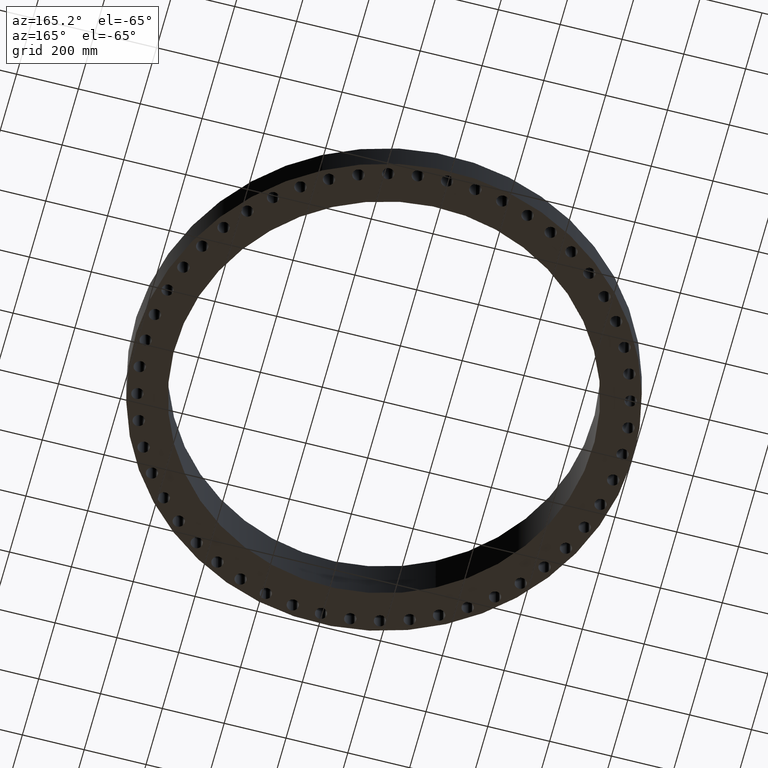
[diagram: clean part render]
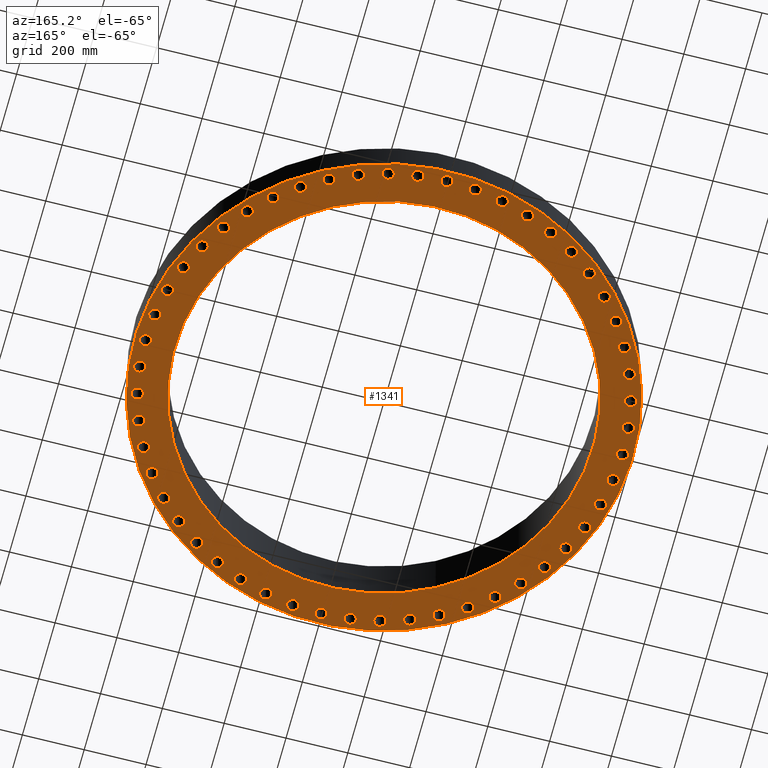
[diagram: same view with one face highlighted and labeled with its STEP entity id]
A machine part, auxiliary view. The second image highlights one B-rep face of the part: STEP entity #1341.
In plain terms, the highlighted planar face has unit normal (0, 0, -1).
Its self-contained STEP definition (entity closure, byte-faithful):
#51=AXIS2_PLACEMENT_3D('Circle Axis2P3D',#49,#50,$) ;
#77=AXIS2_PLACEMENT_3D('Circle Axis2P3D',#75,#76,$) ;
#99=AXIS2_PLACEMENT_3D('Circle Axis2P3D',#97,#98,$) ;
#134=AXIS2_PLACEMENT_3D('Circle Axis2P3D',#132,#133,$) ;
#377=AXIS2_PLACEMENT_3D('Circle Axis2P3D',#375,#376,$) ;
#396=AXIS2_PLACEMENT_3D('Circle Axis2P3D',#394,#395,$) ;
#409=AXIS2_PLACEMENT_3D('Plane Axis2P3D',#406,#407,#408) ;
#425=AXIS2_PLACEMENT_3D('Circle Axis2P3D',#423,#424,$) ;
#434=AXIS2_PLACEMENT_3D('Circle Axis2P3D',#432,#433,$) ;
#443=AXIS2_PLACEMENT_3D('Circle Axis2P3D',#441,#442,$) ;
#452=AXIS2_PLACEMENT_3D('Circle Axis2P3D',#450,#451,$) ;
#461=AXIS2_PLACEMENT_3D('Circle Axis2P3D',#459,#460,$) ;
#470=AXIS2_PLACEMENT_3D('Circle Axis2P3D',#468,#469,$) ;
#479=AXIS2_PLACEMENT_3D('Circle Axis2P3D',#477,#478,$) ;
#488=AXIS2_PLACEMENT_3D('Circle Axis2P3D',#486,#487,$) ;
#497=AXIS2_PLACEMENT_3D('Circle Axis2P3D',#495,#496,$) ;
#506=AXIS2_PLACEMENT_3D('Circle Axis2P3D',#504,#505,$) ;
#515=AXIS2_PLACEMENT_3D('Circle Axis2P3D',#513,#514,$) ;
#524=AXIS2_PLACEMENT_3D('Circle Axis2P3D',#522,#523,$) ;
#533=AXIS2_PLACEMENT_3D('Circle Axis2P3D',#531,#532,$) ;
#542=AXIS2_PLACEMENT_3D('Circle Axis2P3D',#540,#541,$) ;
#551=AXIS2_PLACEMENT_3D('Circle Axis2P3D',#549,#550,$) ;
#560=AXIS2_PLACEMENT_3D('Circle Axis2P3D',#558,#559,$) ;
#569=AXIS2_PLACEMENT_3D('Circle Axis2P3D',#567,#568,$) ;
#578=AXIS2_PLACEMENT_3D('Circle Axis2P3D',#576,#577,$) ;
#587=AXIS2_PLACEMENT_3D('Circle Axis2P3D',#585,#586,$) ;
#596=AXIS2_PLACEMENT_3D('Circle Axis2P3D',#594,#595,$) ;
#605=AXIS2_PLACEMENT_3D('Circle Axis2P3D',#603,#604,$) ;
#614=AXIS2_PLACEMENT_3D('Circle Axis2P3D',#612,#613,$) ;
#623=AXIS2_PLACEMENT_3D('Circle Axis2P3D',#621,#622,$) ;
#632=AXIS2_PLACEMENT_3D('Circle Axis2P3D',#630,#631,$) ;
#641=AXIS2_PLACEMENT_3D('Circle Axis2P3D',#639,#640,$) ;
#650=AXIS2_PLACEMENT_3D('Circle Axis2P3D',#648,#649,$) ;
#659=AXIS2_PLACEMENT_3D('Circle Axis2P3D',#657,#658,$) ;
#668=AXIS2_PLACEMENT_3D('Circle Axis2P3D',#666,#667,$) ;
#677=AXIS2_PLACEMENT_3D('Circle Axis2P3D',#675,#676,$) ;
#686=AXIS2_PLACEMENT_3D('Circle Axis2P3D',#684,#685,$) ;
#695=AXIS2_PLACEMENT_3D('Circle Axis2P3D',#693,#694,$) ;
#704=AXIS2_PLACEMENT_3D('Circle Axis2P3D',#702,#703,$) ;
#713=AXIS2_PLACEMENT_3D('Circle Axis2P3D',#711,#712,$) ;
#722=AXIS2_PLACEMENT_3D('Circle Axis2P3D',#720,#721,$) ;
#731=AXIS2_PLACEMENT_3D('Circle Axis2P3D',#729,#730,$) ;
#740=AXIS2_PLACEMENT_3D('Circle Axis2P3D',#738,#739,$) ;
#749=AXIS2_PLACEMENT_3D('Circle Axis2P3D',#747,#748,$) ;
#758=AXIS2_PLACEMENT_3D('Circle Axis2P3D',#756,#757,$) ;
#767=AXIS2_PLACEMENT_3D('Circle Axis2P3D',#765,#766,$) ;
#776=AXIS2_PLACEMENT_3D('Circle Axis2P3D',#774,#775,$) ;
#785=AXIS2_PLACEMENT_3D('Circle Axis2P3D',#783,#784,$) ;
#794=AXIS2_PLACEMENT_3D('Circle Axis2P3D',#792,#793,$) ;
#803=AXIS2_PLACEMENT_3D('Circle Axis2P3D',#801,#802,$) ;
#812=AXIS2_PLACEMENT_3D('Circle Axis2P3D',#810,#811,$) ;
#821=AXIS2_PLACEMENT_3D('Circle Axis2P3D',#819,#820,$) ;
#830=AXIS2_PLACEMENT_3D('Circle Axis2P3D',#828,#829,$) ;
#839=AXIS2_PLACEMENT_3D('Circle Axis2P3D',#837,#838,$) ;
#848=AXIS2_PLACEMENT_3D('Circle Axis2P3D',#846,#847,$) ;
#857=AXIS2_PLACEMENT_3D('Circle Axis2P3D',#855,#856,$) ;
#866=AXIS2_PLACEMENT_3D('Circle Axis2P3D',#864,#865,$) ;
#875=AXIS2_PLACEMENT_3D('Circle Axis2P3D',#873,#874,$) ;
#884=AXIS2_PLACEMENT_3D('Circle Axis2P3D',#882,#883,$) ;
#893=AXIS2_PLACEMENT_3D('Circle Axis2P3D',#891,#892,$) ;
#902=AXIS2_PLACEMENT_3D('Circle Axis2P3D',#900,#901,$) ;
#911=AXIS2_PLACEMENT_3D('Circle Axis2P3D',#909,#910,$) ;
#920=AXIS2_PLACEMENT_3D('Circle Axis2P3D',#918,#919,$) ;
#929=AXIS2_PLACEMENT_3D('Circle Axis2P3D',#927,#928,$) ;
#938=AXIS2_PLACEMENT_3D('Circle Axis2P3D',#936,#937,$) ;
#947=AXIS2_PLACEMENT_3D('Circle Axis2P3D',#945,#946,$) ;
#956=AXIS2_PLACEMENT_3D('Circle Axis2P3D',#954,#955,$) ;
#965=AXIS2_PLACEMENT_3D('Circle Axis2P3D',#963,#964,$) ;
#974=AXIS2_PLACEMENT_3D('Circle Axis2P3D',#972,#973,$) ;
#983=AXIS2_PLACEMENT_3D('Circle Axis2P3D',#981,#982,$) ;
#992=AXIS2_PLACEMENT_3D('Circle Axis2P3D',#990,#991,$) ;
#1001=AXIS2_PLACEMENT_3D('Circle Axis2P3D',#999,#1000,$) ;
#1010=AXIS2_PLACEMENT_3D('Circle Axis2P3D',#1008,#1009,$) ;
#1019=AXIS2_PLACEMENT_3D('Circle Axis2P3D',#1017,#1018,$) ;
#1028=AXIS2_PLACEMENT_3D('Circle Axis2P3D',#1026,#1027,$) ;
#1037=AXIS2_PLACEMENT_3D('Circle Axis2P3D',#1035,#1036,$) ;
#1046=AXIS2_PLACEMENT_3D('Circle Axis2P3D',#1044,#1045,$) ;
#1055=AXIS2_PLACEMENT_3D('Circle Axis2P3D',#1053,#1054,$) ;
#1064=AXIS2_PLACEMENT_3D('Circle Axis2P3D',#1062,#1063,$) ;
#1073=AXIS2_PLACEMENT_3D('Circle Axis2P3D',#1071,#1072,$) ;
#1082=AXIS2_PLACEMENT_3D('Circle Axis2P3D',#1080,#1081,$) ;
#1091=AXIS2_PLACEMENT_3D('Circle Axis2P3D',#1089,#1090,$) ;
#1100=AXIS2_PLACEMENT_3D('Circle Axis2P3D',#1098,#1099,$) ;
#1109=AXIS2_PLACEMENT_3D('Circle Axis2P3D',#1107,#1108,$) ;
#1118=AXIS2_PLACEMENT_3D('Circle Axis2P3D',#1116,#1117,$) ;
#1127=AXIS2_PLACEMENT_3D('Circle Axis2P3D',#1125,#1126,$) ;
#1136=AXIS2_PLACEMENT_3D('Circle Axis2P3D',#1134,#1135,$) ;
#1145=AXIS2_PLACEMENT_3D('Circle Axis2P3D',#1143,#1144,$) ;
#1154=AXIS2_PLACEMENT_3D('Circle Axis2P3D',#1152,#1153,$) ;
#1163=AXIS2_PLACEMENT_3D('Circle Axis2P3D',#1161,#1162,$) ;
#1172=AXIS2_PLACEMENT_3D('Circle Axis2P3D',#1170,#1171,$) ;
#1181=AXIS2_PLACEMENT_3D('Circle Axis2P3D',#1179,#1180,$) ;
#1190=AXIS2_PLACEMENT_3D('Circle Axis2P3D',#1188,#1189,$) ;
#1199=AXIS2_PLACEMENT_3D('Circle Axis2P3D',#1197,#1198,$) ;
#1208=AXIS2_PLACEMENT_3D('Circle Axis2P3D',#1206,#1207,$) ;
#1217=AXIS2_PLACEMENT_3D('Circle Axis2P3D',#1215,#1216,$) ;
#1226=AXIS2_PLACEMENT_3D('Circle Axis2P3D',#1224,#1225,$) ;
#1235=AXIS2_PLACEMENT_3D('Circle Axis2P3D',#1233,#1234,$) ;
#1244=AXIS2_PLACEMENT_3D('Circle Axis2P3D',#1242,#1243,$) ;
#1253=AXIS2_PLACEMENT_3D('Circle Axis2P3D',#1251,#1252,$) ;
#1262=AXIS2_PLACEMENT_3D('Circle Axis2P3D',#1260,#1261,$) ;
#1271=AXIS2_PLACEMENT_3D('Circle Axis2P3D',#1269,#1270,$) ;
#1280=AXIS2_PLACEMENT_3D('Circle Axis2P3D',#1278,#1279,$) ;
#1289=AXIS2_PLACEMENT_3D('Circle Axis2P3D',#1287,#1288,$) ;
#1298=AXIS2_PLACEMENT_3D('Circle Axis2P3D',#1296,#1297,$) ;
#1307=AXIS2_PLACEMENT_3D('Circle Axis2P3D',#1305,#1306,$) ;
#1316=AXIS2_PLACEMENT_3D('Circle Axis2P3D',#1314,#1315,$) ;
#1325=AXIS2_PLACEMENT_3D('Circle Axis2P3D',#1323,#1324,$) ;
#1334=AXIS2_PLACEMENT_3D('Circle Axis2P3D',#1332,#1333,$) ;
#44=CARTESIAN_POINT('Vertex',(29.7168130787,0.359569153955,0.)) ;
#49=CARTESIAN_POINT('Axis2P3D Location',(30.3750000001,0.,0.)) ;
#53=CARTESIAN_POINT('Vertex',(31.0331869215,-0.359569153955,0.)) ;
#75=CARTESIAN_POINT('Axis2P3D Location',(30.3750000001,0.,0.)) ;
#97=CARTESIAN_POINT('Axis2P3D Location',(0.,0.,3.91637728372E-015)) ;
#101=CARTESIAN_POINT('Vertex',(-15.2217608507,-27.8632463401,3.91637728372E-015)) ;
#103=CARTESIAN_POINT('Vertex',(15.2217608507,27.8632463401,3.91637728372E-015)) ;
#132=CARTESIAN_POINT('Axis2P3D Location',(0.,0.,3.91637728372E-015)) ;
#372=CARTESIAN_POINT('Vertex',(-12.7647049654,-23.3656357104,-5.37103170338E-014)) ;
#375=CARTESIAN_POINT('Axis2P3D Location',(0.,0.,-5.37103170338E-014)) ;
#379=CARTESIAN_POINT('Vertex',(12.7647049654,23.3656357104,-5.37103170338E-014)) ;
#394=CARTESIAN_POINT('Axis2P3D Location',(0.,0.,-5.37103170338E-014)) ;
#406=CARTESIAN_POINT('Axis2P3D Location',(0.,26.6250000001,0.)) ;
#423=CARTESIAN_POINT('Axis2P3D Location',(30.1535320508,-3.66130166277,0.)) ;
#427=CARTESIAN_POINT('Vertex',(29.5434853253,-3.22501850629,0.)) ;
#429=CARTESIAN_POINT('Vertex',(30.7635787764,-4.09758481925,0.)) ;
#432=CARTESIAN_POINT('Axis2P3D Location',(30.1535320508,-3.66130166277,0.)) ;
#441=CARTESIAN_POINT('Axis2P3D Location',(29.4923577044,-7.26921330276,0.)) ;
#445=CARTESIAN_POINT('Vertex',(28.9393470297,-6.76257813461,0.)) ;
#447=CARTESIAN_POINT('Vertex',(30.0453683792,-7.77584847092,-4.47585975282E-015)) ;
#450=CARTESIAN_POINT('Axis2P3D Location',(29.4923577044,-7.26921330276,0.)) ;
#459=CARTESIAN_POINT('Axis2P3D Location',(28.4011183717,-10.771123444,0.)) ;
#463=CARTESIAN_POINT('Vertex',(27.9132078887,-10.2015241457,0.)) ;
#465=CARTESIAN_POINT('Vertex',(28.8890288547,-11.3407227422,0.)) ;
#468=CARTESIAN_POINT('Axis2P3D Location',(28.4011183717,-10.771123444,0.)) ;
#477=CARTESIAN_POINT('Axis2P3D Location',(26.8957267793,-14.1159663509,0.)) ;
#481=CARTESIAN_POINT('Vertex',(26.4800313215,-13.491708963,0.)) ;
#483=CARTESIAN_POINT('Vertex',(27.3114222371,-14.7402237388,0.)) ;
#486=CARTESIAN_POINT('Axis2P3D Location',(26.8957267793,-14.1159663509,0.)) ;
#495=CARTESIAN_POINT('Axis2P3D Location',(24.9981349266,-17.254966682,0.)) ;
#499=CARTESIAN_POINT('Vertex',(24.6607162699,-16.5851542828,0.)) ;
#501=CARTESIAN_POINT('Vertex',(25.3355535833,-17.9247790812,0.)) ;
#504=CARTESIAN_POINT('Axis2P3D Location',(24.9981349266,-17.254966682,0.)) ;
#513=CARTESIAN_POINT('Axis2P3D Location',(22.7360139758,-20.1423507441,0.)) ;
#517=CARTESIAN_POINT('Vertex',(22.481792444,-19.4367507067,0.)) ;
#519=CARTESIAN_POINT('Vertex',(22.9902355076,-20.8479507815,0.)) ;
#522=CARTESIAN_POINT('Axis2P3D Location',(22.7360139758,-20.1423507441,0.)) ;
#531=CARTESIAN_POINT('Axis2P3D Location',(20.1423507441,-22.7360139758,0.)) ;
#535=CARTESIAN_POINT('Vertex',(19.9750334596,-22.0049155376,0.)) ;
#537=CARTESIAN_POINT('Vertex',(20.3096680287,-23.467112414,0.)) ;
#540=CARTESIAN_POINT('Axis2P3D Location',(20.1423507441,-22.7360139758,0.)) ;
#549=CARTESIAN_POINT('Axis2P3D Location',(17.254966682,-24.9981349266,0.)) ;
#553=CARTESIAN_POINT('Vertex',(17.1769935076,-24.2521991492,0.)) ;
#555=CARTESIAN_POINT('Vertex',(17.3329398565,-25.7440707041,0.)) ;
#558=CARTESIAN_POINT('Axis2P3D Location',(17.254966682,-24.9981349266,0.)) ;
#567=CARTESIAN_POINT('Axis2P3D Location',(14.1159663509,-26.8957267793,0.)) ;
#571=CARTESIAN_POINT('Vertex',(14.128474311,-26.145831086,0.)) ;
#573=CARTESIAN_POINT('Vertex',(14.1034583908,-27.6456224727,-2.23792987641E-015)) ;
#576=CARTESIAN_POINT('Axis2P3D Location',(14.1159663509,-26.8957267793,0.)) ;
#585=CARTESIAN_POINT('Axis2P3D Location',(10.771123444,-28.4011183717,0.)) ;
#589=CARTESIAN_POINT('Vertex',(10.8739301444,-27.6581979302,0.)) ;
#591=CARTESIAN_POINT('Vertex',(10.6683167436,-29.1440388132,-4.47585975282E-015)) ;
#594=CARTESIAN_POINT('Axis2P3D Location',(10.771123444,-28.4011183717,0.)) ;
#603=CARTESIAN_POINT('Axis2P3D Location',(7.26921330276,-29.4923577044,0.)) ;
#607=CARTESIAN_POINT('Vertex',(7.46081959027,-28.7672459678,0.)) ;
#609=CARTESIAN_POINT('Vertex',(7.07760701526,-30.2174694411,0.)) ;
#612=CARTESIAN_POINT('Axis2P3D Location',(7.26921330276,-29.4923577044,0.)) ;
#621=CARTESIAN_POINT('Axis2P3D Location',(3.66130166277,-30.1535320508,0.)) ;
#625=CARTESIAN_POINT('Vertex',(3.93891348626,-29.456802781,0.)) ;
#627=CARTESIAN_POINT('Vertex',(3.38368983928,-30.8502613207,0.)) ;
#630=CARTESIAN_POINT('Axis2P3D Location',(3.66130166277,-30.1535320508,0.)) ;
#639=CARTESIAN_POINT('Axis2P3D Location',(1.24484849375E-014,-30.3750000001,0.)) ;
#643=CARTESIAN_POINT('Vertex',(0.359569153955,-29.7168130787,0.)) ;
#645=CARTESIAN_POINT('Vertex',(-0.359569153955,-31.0331869215,0.)) ;
#648=CARTESIAN_POINT('Axis2P3D Location',(4.96540691328E-015,-30.3750000001,0.)) ;
#657=CARTESIAN_POINT('Axis2P3D Location',(-3.66130166277,-30.1535320508,0.)) ;
#661=CARTESIAN_POINT('Vertex',(-3.22501850629,-29.5434853253,0.)) ;
#663=CARTESIAN_POINT('Vertex',(-4.09758481925,-30.7635787764,0.)) ;
#666=CARTESIAN_POINT('Axis2P3D Location',(-3.66130166277,-30.1535320508,0.)) ;
#675=CARTESIAN_POINT('Axis2P3D Location',(-7.26921330276,-29.4923577044,0.)) ;
#679=CARTESIAN_POINT('Vertex',(-6.76257813461,-28.9393470297,0.)) ;
#681=CARTESIAN_POINT('Vertex',(-7.77584847092,-30.0453683792,-4.47585975282E-015)) ;
#684=CARTESIAN_POINT('Axis2P3D Location',(-7.26921330276,-29.4923577044,0.)) ;
#693=CARTESIAN_POINT('Axis2P3D Location',(-10.771123444,-28.4011183717,0.)) ;
#697=CARTESIAN_POINT('Vertex',(-10.2015241457,-27.9132078887,0.)) ;
#699=CARTESIAN_POINT('Vertex',(-11.3407227422,-28.8890288547,-4.47585975282E-015)) ;
#702=CARTESIAN_POINT('Axis2P3D Location',(-10.771123444,-28.4011183717,0.)) ;
#711=CARTESIAN_POINT('Axis2P3D Location',(-14.1159663509,-26.8957267793,0.)) ;
#715=CARTESIAN_POINT('Vertex',(-13.491708963,-26.4800313215,0.)) ;
#717=CARTESIAN_POINT('Vertex',(-14.7402237388,-27.3114222371,0.)) ;
#720=CARTESIAN_POINT('Axis2P3D Location',(-14.1159663509,-26.8957267793,0.)) ;
#729=CARTESIAN_POINT('Axis2P3D Location',(-17.254966682,-24.9981349266,0.)) ;
#733=CARTESIAN_POINT('Vertex',(-16.5851542828,-24.6607162699,0.)) ;
#735=CARTESIAN_POINT('Vertex',(-17.9247790812,-25.3355535833,0.)) ;
#738=CARTESIAN_POINT('Axis2P3D Location',(-17.254966682,-24.9981349266,0.)) ;
#747=CARTESIAN_POINT('Axis2P3D Location',(-20.1423507441,-22.7360139758,0.)) ;
#751=CARTESIAN_POINT('Vertex',(-19.4367507067,-22.481792444,0.)) ;
#753=CARTESIAN_POINT('Vertex',(-20.8479507815,-22.9902355076,0.)) ;
#756=CARTESIAN_POINT('Axis2P3D Location',(-20.1423507441,-22.7360139758,0.)) ;
#765=CARTESIAN_POINT('Axis2P3D Location',(-22.7360139758,-20.1423507441,0.)) ;
#769=CARTESIAN_POINT('Vertex',(-22.0049155376,-19.9750334596,0.)) ;
#771=CARTESIAN_POINT('Vertex',(-23.467112414,-20.3096680287,0.)) ;
#774=CARTESIAN_POINT('Axis2P3D Location',(-22.7360139758,-20.1423507441,0.)) ;
#783=CARTESIAN_POINT('Axis2P3D Location',(-24.9981349266,-17.254966682,0.)) ;
#787=CARTESIAN_POINT('Vertex',(-24.2521991492,-17.1769935076,0.)) ;
#789=CARTESIAN_POINT('Vertex',(-25.7440707041,-17.3329398565,-4.47585975282E-015)) ;
#792=CARTESIAN_POINT('Axis2P3D Location',(-24.9981349266,-17.254966682,0.)) ;
#801=CARTESIAN_POINT('Axis2P3D Location',(-26.8957267793,-14.1159663509,0.)) ;
#805=CARTESIAN_POINT('Vertex',(-26.145831086,-14.128474311,0.)) ;
#807=CARTESIAN_POINT('Vertex',(-27.6456224727,-14.1034583908,0.)) ;
#810=CARTESIAN_POINT('Axis2P3D Location',(-26.8957267793,-14.1159663509,0.)) ;
#819=CARTESIAN_POINT('Axis2P3D Location',(-28.4011183717,-10.771123444,0.)) ;
#823=CARTESIAN_POINT('Vertex',(-27.6581979302,-10.8739301444,0.)) ;
#825=CARTESIAN_POINT('Vertex',(-29.1440388132,-10.6683167436,-4.47585975282E-015)) ;
#828=CARTESIAN_POINT('Axis2P3D Location',(-28.4011183717,-10.771123444,0.)) ;
#837=CARTESIAN_POINT('Axis2P3D Location',(-29.4923577044,-7.26921330276,0.)) ;
#841=CARTESIAN_POINT('Vertex',(-28.7672459678,-7.46081959027,0.)) ;
#843=CARTESIAN_POINT('Vertex',(-30.2174694411,-7.07760701526,-4.47585975282E-015)) ;
#846=CARTESIAN_POINT('Axis2P3D Location',(-29.4923577044,-7.26921330276,0.)) ;
#855=CARTESIAN_POINT('Axis2P3D Location',(-30.1535320508,-3.66130166277,0.)) ;
#859=CARTESIAN_POINT('Vertex',(-29.456802781,-3.93891348626,0.)) ;
#861=CARTESIAN_POINT('Vertex',(-30.8502613207,-3.38368983928,0.)) ;
#864=CARTESIAN_POINT('Axis2P3D Location',(-30.1535320508,-3.66130166277,0.)) ;
#873=CARTESIAN_POINT('Axis2P3D Location',(-30.3750000001,-1.79034390113E-014,0.)) ;
#877=CARTESIAN_POINT('Vertex',(-29.7168130787,-0.359569153955,0.)) ;
#879=CARTESIAN_POINT('Vertex',(-31.0331869215,0.359569153955,0.)) ;
#882=CARTESIAN_POINT('Axis2P3D Location',(-30.3750000001,-1.79034390113E-014,0.)) ;
#891=CARTESIAN_POINT('Axis2P3D Location',(-30.1535320508,3.66130166277,0.)) ;
#895=CARTESIAN_POINT('Vertex',(-29.5434853253,3.22501850629,0.)) ;
#897=CARTESIAN_POINT('Vertex',(-30.7635787764,4.09758481925,-4.47585975282E-015)) ;
#900=CARTESIAN_POINT('Axis2P3D Location',(-30.1535320508,3.66130166277,0.)) ;
#909=CARTESIAN_POINT('Axis2P3D Location',(-29.4923577044,7.26921330276,0.)) ;
#913=CARTESIAN_POINT('Vertex',(-28.9393470297,6.76257813461,0.)) ;
#915=CARTESIAN_POINT('Vertex',(-30.0453683792,7.77584847092,0.)) ;
#918=CARTESIAN_POINT('Axis2P3D Location',(-29.4923577044,7.26921330276,0.)) ;
#927=CARTESIAN_POINT('Axis2P3D Location',(-28.4011183717,10.771123444,0.)) ;
#931=CARTESIAN_POINT('Vertex',(-27.9132078887,10.2015241457,0.)) ;
#933=CARTESIAN_POINT('Vertex',(-28.8890288547,11.3407227422,0.)) ;
#936=CARTESIAN_POINT('Axis2P3D Location',(-28.4011183717,10.771123444,0.)) ;
#945=CARTESIAN_POINT('Axis2P3D Location',(-26.8957267793,14.1159663509,0.)) ;
#949=CARTESIAN_POINT('Vertex',(-26.4800313215,13.491708963,0.)) ;
#951=CARTESIAN_POINT('Vertex',(-27.3114222371,14.7402237388,0.)) ;
#954=CARTESIAN_POINT('Axis2P3D Location',(-26.8957267793,14.1159663509,0.)) ;
#963=CARTESIAN_POINT('Axis2P3D Location',(-24.9981349266,17.254966682,0.)) ;
#967=CARTESIAN_POINT('Vertex',(-24.6607162699,16.5851542828,0.)) ;
#969=CARTESIAN_POINT('Vertex',(-25.3355535833,17.9247790812,0.)) ;
#972=CARTESIAN_POINT('Axis2P3D Location',(-24.9981349266,17.254966682,0.)) ;
#981=CARTESIAN_POINT('Axis2P3D Location',(-22.7360139758,20.1423507441,0.)) ;
#985=CARTESIAN_POINT('Vertex',(-22.481792444,19.4367507067,0.)) ;
#987=CARTESIAN_POINT('Vertex',(-22.9902355076,20.8479507815,0.)) ;
#990=CARTESIAN_POINT('Axis2P3D Location',(-22.7360139758,20.1423507441,0.)) ;
#999=CARTESIAN_POINT('Axis2P3D Location',(-20.1423507441,22.7360139758,0.)) ;
#1003=CARTESIAN_POINT('Vertex',(-19.9750334596,22.0049155376,0.)) ;
#1005=CARTESIAN_POINT('Vertex',(-20.3096680287,23.467112414,0.)) ;
#1008=CARTESIAN_POINT('Axis2P3D Location',(-20.1423507441,22.7360139758,0.)) ;
#1017=CARTESIAN_POINT('Axis2P3D Location',(-17.254966682,24.9981349266,0.)) ;
#1021=CARTESIAN_POINT('Vertex',(-17.1769935076,24.2521991492,0.)) ;
#1023=CARTESIAN_POINT('Vertex',(-17.3329398565,25.7440707041,0.)) ;
#1026=CARTESIAN_POINT('Axis2P3D Location',(-17.254966682,24.9981349266,0.)) ;
#1035=CARTESIAN_POINT('Axis2P3D Location',(-14.1159663509,26.8957267793,0.)) ;
#1039=CARTESIAN_POINT('Vertex',(-14.128474311,26.145831086,0.)) ;
#1041=CARTESIAN_POINT('Vertex',(-14.1034583908,27.6456224727,-4.47585975282E-015)) ;
#1044=CARTESIAN_POINT('Axis2P3D Location',(-14.1159663509,26.8957267793,0.)) ;
#1053=CARTESIAN_POINT('Axis2P3D Location',(-10.771123444,28.4011183717,0.)) ;
#1057=CARTESIAN_POINT('Vertex',(-10.8739301444,27.6581979302,0.)) ;
#1059=CARTESIAN_POINT('Vertex',(-10.6683167436,29.1440388132,0.)) ;
#1062=CARTESIAN_POINT('Axis2P3D Location',(-10.771123444,28.4011183717,0.)) ;
#1071=CARTESIAN_POINT('Axis2P3D Location',(-7.26921330276,29.4923577044,0.)) ;
#1075=CARTESIAN_POINT('Vertex',(-7.46081959027,28.7672459678,0.)) ;
#1077=CARTESIAN_POINT('Vertex',(-7.07760701526,30.2174694411,-4.47585975282E-015)) ;
#1080=CARTESIAN_POINT('Axis2P3D Location',(-7.26921330276,29.4923577044,0.)) ;
#1089=CARTESIAN_POINT('Axis2P3D Location',(-3.66130166277,30.1535320508,0.)) ;
#1093=CARTESIAN_POINT('Vertex',(-3.93891348626,29.456802781,0.)) ;
#1095=CARTESIAN_POINT('Vertex',(-3.38368983928,30.8502613207,-2.23792987641E-015)) ;
#1098=CARTESIAN_POINT('Axis2P3D Location',(-3.66130166277,30.1535320508,0.)) ;
#1107=CARTESIAN_POINT('Axis2P3D Location',(-2.79741234551E-016,30.3750000001,0.)) ;
#1111=CARTESIAN_POINT('Vertex',(-0.359569153955,29.7168130787,0.)) ;
#1113=CARTESIAN_POINT('Vertex',(0.359569153955,31.0331869215,0.)) ;
#1116=CARTESIAN_POINT('Axis2P3D Location',(5.59482469102E-016,30.3750000001,0.)) ;
#1125=CARTESIAN_POINT('Axis2P3D Location',(3.66130166277,30.1535320508,0.)) ;
#1129=CARTESIAN_POINT('Vertex',(3.22501850629,29.5434853253,0.)) ;
#1131=CARTESIAN_POINT('Vertex',(4.09758481925,30.7635787764,0.)) ;
#1134=CARTESIAN_POINT('Axis2P3D Location',(3.66130166277,30.1535320508,0.)) ;
#1143=CARTESIAN_POINT('Axis2P3D Location',(7.26921330276,29.4923577044,0.)) ;
#1147=CARTESIAN_POINT('Vertex',(6.76257813461,28.9393470297,0.)) ;
#1149=CARTESIAN_POINT('Vertex',(7.77584847092,30.0453683792,0.)) ;
#1152=CARTESIAN_POINT('Axis2P3D Location',(7.26921330276,29.4923577044,0.)) ;
#1161=CARTESIAN_POINT('Axis2P3D Location',(10.771123444,28.4011183717,0.)) ;
#1165=CARTESIAN_POINT('Vertex',(10.2015241457,27.9132078887,0.)) ;
#1167=CARTESIAN_POINT('Vertex',(11.3407227422,28.8890288547,0.)) ;
#1170=CARTESIAN_POINT('Axis2P3D Location',(10.771123444,28.4011183717,0.)) ;
#1179=CARTESIAN_POINT('Axis2P3D Location',(14.1159663509,26.8957267793,0.)) ;
#1183=CARTESIAN_POINT('Vertex',(13.491708963,26.4800313215,0.)) ;
#1185=CARTESIAN_POINT('Vertex',(14.7402237388,27.3114222371,-4.47585975282E-015)) ;
#1188=CARTESIAN_POINT('Axis2P3D Location',(14.1159663509,26.8957267793,0.)) ;
#1197=CARTESIAN_POINT('Axis2P3D Location',(17.254966682,24.9981349266,0.)) ;
#1201=CARTESIAN_POINT('Vertex',(16.5851542828,24.6607162699,0.)) ;
#1203=CARTESIAN_POINT('Vertex',(17.9247790812,25.3355535833,0.)) ;
#1206=CARTESIAN_POINT('Axis2P3D Location',(17.254966682,24.9981349266,0.)) ;
#1215=CARTESIAN_POINT('Axis2P3D Location',(20.1423507441,22.7360139758,0.)) ;
#1219=CARTESIAN_POINT('Vertex',(19.4367507067,22.481792444,0.)) ;
#1221=CARTESIAN_POINT('Vertex',(20.8479507815,22.9902355076,0.)) ;
#1224=CARTESIAN_POINT('Axis2P3D Location',(20.1423507441,22.7360139758,0.)) ;
#1233=CARTESIAN_POINT('Axis2P3D Location',(22.7360139758,20.1423507441,0.)) ;
#1237=CARTESIAN_POINT('Vertex',(22.0049155376,19.9750334596,0.)) ;
#1239=CARTESIAN_POINT('Vertex',(23.467112414,20.3096680287,0.)) ;
#1242=CARTESIAN_POINT('Axis2P3D Location',(22.7360139758,20.1423507441,0.)) ;
#1251=CARTESIAN_POINT('Axis2P3D Location',(24.9981349266,17.254966682,0.)) ;
#1255=CARTESIAN_POINT('Vertex',(24.2521991492,17.1769935076,0.)) ;
#1257=CARTESIAN_POINT('Vertex',(25.7440707041,17.3329398565,0.)) ;
#1260=CARTESIAN_POINT('Axis2P3D Location',(24.9981349266,17.254966682,0.)) ;
#1269=CARTESIAN_POINT('Axis2P3D Location',(26.8957267793,14.1159663509,0.)) ;
#1273=CARTESIAN_POINT('Vertex',(26.145831086,14.128474311,0.)) ;
#1275=CARTESIAN_POINT('Vertex',(27.6456224727,14.1034583908,0.)) ;
#1278=CARTESIAN_POINT('Axis2P3D Location',(26.8957267793,14.1159663509,0.)) ;
#1287=CARTESIAN_POINT('Axis2P3D Location',(28.4011183717,10.771123444,0.)) ;
#1291=CARTESIAN_POINT('Vertex',(27.6581979302,10.8739301444,0.)) ;
#1293=CARTESIAN_POINT('Vertex',(29.1440388132,10.6683167436,0.)) ;
#1296=CARTESIAN_POINT('Axis2P3D Location',(28.4011183717,10.771123444,0.)) ;
#1305=CARTESIAN_POINT('Axis2P3D Location',(29.4923577044,7.26921330276,0.)) ;
#1309=CARTESIAN_POINT('Vertex',(28.7672459678,7.46081959027,0.)) ;
#1311=CARTESIAN_POINT('Vertex',(30.2174694411,7.07760701526,-4.47585975282E-015)) ;
#1314=CARTESIAN_POINT('Axis2P3D Location',(29.4923577044,7.26921330276,0.)) ;
#1323=CARTESIAN_POINT('Axis2P3D Location',(30.1535320508,3.66130166277,0.)) ;
#1327=CARTESIAN_POINT('Vertex',(29.456802781,3.93891348626,0.)) ;
#1329=CARTESIAN_POINT('Vertex',(30.8502613207,3.38368983928,-2.23792987641E-015)) ;
#1332=CARTESIAN_POINT('Axis2P3D Location',(30.1535320508,3.66130166277,0.)) ;
#50=DIRECTION('Axis2P3D Direction',(0.,-0.,-0.0393700787402)) ;
#76=DIRECTION('Axis2P3D Direction',(0.,-0.,-0.0393700787402)) ;
#98=DIRECTION('Axis2P3D Direction',(0.,0.,-0.0393700787402)) ;
#133=DIRECTION('Axis2P3D Direction',(0.,0.,-0.0393700787402)) ;
#376=DIRECTION('Axis2P3D Direction',(0.,0.,-0.0393700787402)) ;
#395=DIRECTION('Axis2P3D Direction',(0.,0.,-0.0393700787402)) ;
#407=DIRECTION('Axis2P3D Direction',(0.,0.,-0.0393700787402)) ;
#408=DIRECTION('Axis2P3D XDirection',(0.0393700787402,0.,0.)) ;
#424=DIRECTION('Axis2P3D Direction',(0.,0.,-0.0393700787402)) ;
#433=DIRECTION('Axis2P3D Direction',(0.,0.,-0.0393700787402)) ;
#442=DIRECTION('Axis2P3D Direction',(0.,0.,-0.0393700787402)) ;
#451=DIRECTION('Axis2P3D Direction',(0.,0.,-0.0393700787402)) ;
#460=DIRECTION('Axis2P3D Direction',(0.,0.,-0.0393700787402)) ;
#469=DIRECTION('Axis2P3D Direction',(0.,0.,-0.0393700787402)) ;
#478=DIRECTION('Axis2P3D Direction',(0.,0.,-0.0393700787402)) ;
#487=DIRECTION('Axis2P3D Direction',(0.,0.,-0.0393700787402)) ;
#496=DIRECTION('Axis2P3D Direction',(0.,0.,-0.0393700787402)) ;
#505=DIRECTION('Axis2P3D Direction',(0.,0.,-0.0393700787402)) ;
#514=DIRECTION('Axis2P3D Direction',(0.,0.,-0.0393700787402)) ;
#523=DIRECTION('Axis2P3D Direction',(0.,0.,-0.0393700787402)) ;
#532=DIRECTION('Axis2P3D Direction',(0.,0.,-0.0393700787402)) ;
#541=DIRECTION('Axis2P3D Direction',(0.,0.,-0.0393700787402)) ;
#550=DIRECTION('Axis2P3D Direction',(0.,0.,-0.0393700787402)) ;
#559=DIRECTION('Axis2P3D Direction',(0.,0.,-0.0393700787402)) ;
#568=DIRECTION('Axis2P3D Direction',(0.,0.,-0.0393700787402)) ;
#577=DIRECTION('Axis2P3D Direction',(0.,0.,-0.0393700787402)) ;
#586=DIRECTION('Axis2P3D Direction',(0.,0.,-0.0393700787402)) ;
#595=DIRECTION('Axis2P3D Direction',(0.,0.,-0.0393700787402)) ;
#604=DIRECTION('Axis2P3D Direction',(0.,0.,-0.0393700787402)) ;
#613=DIRECTION('Axis2P3D Direction',(0.,0.,-0.0393700787402)) ;
#622=DIRECTION('Axis2P3D Direction',(0.,0.,-0.0393700787402)) ;
#631=DIRECTION('Axis2P3D Direction',(0.,0.,-0.0393700787402)) ;
#640=DIRECTION('Axis2P3D Direction',(0.,0.,-0.0393700787402)) ;
#649=DIRECTION('Axis2P3D Direction',(0.,0.,-0.0393700787402)) ;
#658=DIRECTION('Axis2P3D Direction',(0.,0.,-0.0393700787402)) ;
#667=DIRECTION('Axis2P3D Direction',(0.,0.,-0.0393700787402)) ;
#676=DIRECTION('Axis2P3D Direction',(0.,0.,-0.0393700787402)) ;
#685=DIRECTION('Axis2P3D Direction',(0.,0.,-0.0393700787402)) ;
#694=DIRECTION('Axis2P3D Direction',(0.,0.,-0.0393700787402)) ;
#703=DIRECTION('Axis2P3D Direction',(0.,0.,-0.0393700787402)) ;
#712=DIRECTION('Axis2P3D Direction',(0.,0.,-0.0393700787402)) ;
#721=DIRECTION('Axis2P3D Direction',(0.,0.,-0.0393700787402)) ;
#730=DIRECTION('Axis2P3D Direction',(0.,0.,-0.0393700787402)) ;
#739=DIRECTION('Axis2P3D Direction',(0.,0.,-0.0393700787402)) ;
#748=DIRECTION('Axis2P3D Direction',(0.,0.,-0.0393700787402)) ;
#757=DIRECTION('Axis2P3D Direction',(0.,0.,-0.0393700787402)) ;
#766=DIRECTION('Axis2P3D Direction',(0.,0.,-0.0393700787402)) ;
#775=DIRECTION('Axis2P3D Direction',(0.,0.,-0.0393700787402)) ;
#784=DIRECTION('Axis2P3D Direction',(0.,0.,-0.0393700787402)) ;
#793=DIRECTION('Axis2P3D Direction',(0.,0.,-0.0393700787402)) ;
#802=DIRECTION('Axis2P3D Direction',(0.,0.,-0.0393700787402)) ;
#811=DIRECTION('Axis2P3D Direction',(0.,0.,-0.0393700787402)) ;
#820=DIRECTION('Axis2P3D Direction',(0.,0.,-0.0393700787402)) ;
#829=DIRECTION('Axis2P3D Direction',(0.,0.,-0.0393700787402)) ;
#838=DIRECTION('Axis2P3D Direction',(0.,0.,-0.0393700787402)) ;
#847=DIRECTION('Axis2P3D Direction',(0.,0.,-0.0393700787402)) ;
#856=DIRECTION('Axis2P3D Direction',(0.,0.,-0.0393700787402)) ;
#865=DIRECTION('Axis2P3D Direction',(0.,0.,-0.0393700787402)) ;
#874=DIRECTION('Axis2P3D Direction',(0.,0.,-0.0393700787402)) ;
#883=DIRECTION('Axis2P3D Direction',(0.,0.,-0.0393700787402)) ;
#892=DIRECTION('Axis2P3D Direction',(0.,0.,-0.0393700787402)) ;
#901=DIRECTION('Axis2P3D Direction',(0.,0.,-0.0393700787402)) ;
#910=DIRECTION('Axis2P3D Direction',(0.,0.,-0.0393700787402)) ;
#919=DIRECTION('Axis2P3D Direction',(0.,0.,-0.0393700787402)) ;
#928=DIRECTION('Axis2P3D Direction',(0.,0.,-0.0393700787402)) ;
#937=DIRECTION('Axis2P3D Direction',(0.,0.,-0.0393700787402)) ;
#946=DIRECTION('Axis2P3D Direction',(0.,0.,-0.0393700787402)) ;
#955=DIRECTION('Axis2P3D Direction',(0.,0.,-0.0393700787402)) ;
#964=DIRECTION('Axis2P3D Direction',(0.,0.,-0.0393700787402)) ;
#973=DIRECTION('Axis2P3D Direction',(0.,0.,-0.0393700787402)) ;
#982=DIRECTION('Axis2P3D Direction',(0.,0.,-0.0393700787402)) ;
#991=DIRECTION('Axis2P3D Direction',(0.,0.,-0.0393700787402)) ;
#1000=DIRECTION('Axis2P3D Direction',(0.,0.,-0.0393700787402)) ;
#1009=DIRECTION('Axis2P3D Direction',(0.,0.,-0.0393700787402)) ;
#1018=DIRECTION('Axis2P3D Direction',(0.,0.,-0.0393700787402)) ;
#1027=DIRECTION('Axis2P3D Direction',(0.,0.,-0.0393700787402)) ;
#1036=DIRECTION('Axis2P3D Direction',(0.,0.,-0.0393700787402)) ;
#1045=DIRECTION('Axis2P3D Direction',(0.,0.,-0.0393700787402)) ;
#1054=DIRECTION('Axis2P3D Direction',(0.,0.,-0.0393700787402)) ;
#1063=DIRECTION('Axis2P3D Direction',(0.,0.,-0.0393700787402)) ;
#1072=DIRECTION('Axis2P3D Direction',(0.,0.,-0.0393700787402)) ;
#1081=DIRECTION('Axis2P3D Direction',(0.,0.,-0.0393700787402)) ;
#1090=DIRECTION('Axis2P3D Direction',(0.,0.,-0.0393700787402)) ;
#1099=DIRECTION('Axis2P3D Direction',(0.,0.,-0.0393700787402)) ;
#1108=DIRECTION('Axis2P3D Direction',(0.,0.,-0.0393700787402)) ;
#1117=DIRECTION('Axis2P3D Direction',(0.,0.,-0.0393700787402)) ;
#1126=DIRECTION('Axis2P3D Direction',(0.,0.,-0.0393700787402)) ;
#1135=DIRECTION('Axis2P3D Direction',(0.,0.,-0.0393700787402)) ;
#1144=DIRECTION('Axis2P3D Direction',(0.,0.,-0.0393700787402)) ;
#1153=DIRECTION('Axis2P3D Direction',(0.,0.,-0.0393700787402)) ;
#1162=DIRECTION('Axis2P3D Direction',(0.,0.,-0.0393700787402)) ;
#1171=DIRECTION('Axis2P3D Direction',(0.,0.,-0.0393700787402)) ;
#1180=DIRECTION('Axis2P3D Direction',(0.,0.,-0.0393700787402)) ;
#1189=DIRECTION('Axis2P3D Direction',(0.,0.,-0.0393700787402)) ;
#1198=DIRECTION('Axis2P3D Direction',(0.,0.,-0.0393700787402)) ;
#1207=DIRECTION('Axis2P3D Direction',(0.,0.,-0.0393700787402)) ;
#1216=DIRECTION('Axis2P3D Direction',(0.,0.,-0.0393700787402)) ;
#1225=DIRECTION('Axis2P3D Direction',(0.,0.,-0.0393700787402)) ;
#1234=DIRECTION('Axis2P3D Direction',(0.,0.,-0.0393700787402)) ;
#1243=DIRECTION('Axis2P3D Direction',(0.,0.,-0.0393700787402)) ;
#1252=DIRECTION('Axis2P3D Direction',(0.,0.,-0.0393700787402)) ;
#1261=DIRECTION('Axis2P3D Direction',(0.,0.,-0.0393700787402)) ;
#1270=DIRECTION('Axis2P3D Direction',(0.,0.,-0.0393700787402)) ;
#1279=DIRECTION('Axis2P3D Direction',(0.,0.,-0.0393700787402)) ;
#1288=DIRECTION('Axis2P3D Direction',(0.,0.,-0.0393700787402)) ;
#1297=DIRECTION('Axis2P3D Direction',(0.,0.,-0.0393700787402)) ;
#1306=DIRECTION('Axis2P3D Direction',(0.,0.,-0.0393700787402)) ;
#1315=DIRECTION('Axis2P3D Direction',(0.,0.,-0.0393700787402)) ;
#1324=DIRECTION('Axis2P3D Direction',(0.,0.,-0.0393700787402)) ;
#1333=DIRECTION('Axis2P3D Direction',(0.,0.,-0.0393700787402)) ;
#412=ORIENTED_EDGE('',*,*,#105,.T.) ;
#413=ORIENTED_EDGE('',*,*,#136,.T.) ;
#416=ORIENTED_EDGE('',*,*,#79,.F.) ;
#417=ORIENTED_EDGE('',*,*,#55,.F.) ;
#420=ORIENTED_EDGE('',*,*,#398,.F.) ;
#421=ORIENTED_EDGE('',*,*,#381,.F.) ;
#438=ORIENTED_EDGE('',*,*,#431,.F.) ;
#439=ORIENTED_EDGE('',*,*,#436,.F.) ;
#456=ORIENTED_EDGE('',*,*,#449,.F.) ;
#457=ORIENTED_EDGE('',*,*,#454,.F.) ;
#474=ORIENTED_EDGE('',*,*,#467,.F.) ;
#475=ORIENTED_EDGE('',*,*,#472,.F.) ;
#492=ORIENTED_EDGE('',*,*,#485,.F.) ;
#493=ORIENTED_EDGE('',*,*,#490,.F.) ;
#510=ORIENTED_EDGE('',*,*,#503,.F.) ;
#511=ORIENTED_EDGE('',*,*,#508,.F.) ;
#528=ORIENTED_EDGE('',*,*,#521,.F.) ;
#529=ORIENTED_EDGE('',*,*,#526,.F.) ;
#546=ORIENTED_EDGE('',*,*,#539,.F.) ;
#547=ORIENTED_EDGE('',*,*,#544,.F.) ;
#564=ORIENTED_EDGE('',*,*,#557,.F.) ;
#565=ORIENTED_EDGE('',*,*,#562,.F.) ;
#582=ORIENTED_EDGE('',*,*,#575,.F.) ;
#583=ORIENTED_EDGE('',*,*,#580,.F.) ;
#600=ORIENTED_EDGE('',*,*,#593,.F.) ;
#601=ORIENTED_EDGE('',*,*,#598,.F.) ;
#618=ORIENTED_EDGE('',*,*,#611,.F.) ;
#619=ORIENTED_EDGE('',*,*,#616,.F.) ;
#636=ORIENTED_EDGE('',*,*,#629,.F.) ;
#637=ORIENTED_EDGE('',*,*,#634,.F.) ;
#654=ORIENTED_EDGE('',*,*,#647,.F.) ;
#655=ORIENTED_EDGE('',*,*,#652,.F.) ;
#672=ORIENTED_EDGE('',*,*,#665,.F.) ;
#673=ORIENTED_EDGE('',*,*,#670,.F.) ;
#690=ORIENTED_EDGE('',*,*,#683,.F.) ;
#691=ORIENTED_EDGE('',*,*,#688,.F.) ;
#708=ORIENTED_EDGE('',*,*,#701,.F.) ;
#709=ORIENTED_EDGE('',*,*,#706,.F.) ;
#726=ORIENTED_EDGE('',*,*,#719,.F.) ;
#727=ORIENTED_EDGE('',*,*,#724,.F.) ;
#744=ORIENTED_EDGE('',*,*,#737,.F.) ;
#745=ORIENTED_EDGE('',*,*,#742,.F.) ;
#762=ORIENTED_EDGE('',*,*,#755,.F.) ;
#763=ORIENTED_EDGE('',*,*,#760,.F.) ;
#780=ORIENTED_EDGE('',*,*,#773,.F.) ;
#781=ORIENTED_EDGE('',*,*,#778,.F.) ;
#798=ORIENTED_EDGE('',*,*,#791,.F.) ;
#799=ORIENTED_EDGE('',*,*,#796,.F.) ;
#816=ORIENTED_EDGE('',*,*,#809,.F.) ;
#817=ORIENTED_EDGE('',*,*,#814,.F.) ;
#834=ORIENTED_EDGE('',*,*,#827,.F.) ;
#835=ORIENTED_EDGE('',*,*,#832,.F.) ;
#852=ORIENTED_EDGE('',*,*,#845,.F.) ;
#853=ORIENTED_EDGE('',*,*,#850,.F.) ;
#870=ORIENTED_EDGE('',*,*,#863,.F.) ;
#871=ORIENTED_EDGE('',*,*,#868,.F.) ;
#888=ORIENTED_EDGE('',*,*,#881,.F.) ;
#889=ORIENTED_EDGE('',*,*,#886,.F.) ;
#906=ORIENTED_EDGE('',*,*,#899,.F.) ;
#907=ORIENTED_EDGE('',*,*,#904,.F.) ;
#924=ORIENTED_EDGE('',*,*,#917,.F.) ;
#925=ORIENTED_EDGE('',*,*,#922,.F.) ;
#942=ORIENTED_EDGE('',*,*,#935,.F.) ;
#943=ORIENTED_EDGE('',*,*,#940,.F.) ;
#960=ORIENTED_EDGE('',*,*,#953,.F.) ;
#961=ORIENTED_EDGE('',*,*,#958,.F.) ;
#978=ORIENTED_EDGE('',*,*,#971,.F.) ;
#979=ORIENTED_EDGE('',*,*,#976,.F.) ;
#996=ORIENTED_EDGE('',*,*,#989,.F.) ;
#997=ORIENTED_EDGE('',*,*,#994,.F.) ;
#1014=ORIENTED_EDGE('',*,*,#1007,.F.) ;
#1015=ORIENTED_EDGE('',*,*,#1012,.F.) ;
#1032=ORIENTED_EDGE('',*,*,#1025,.F.) ;
#1033=ORIENTED_EDGE('',*,*,#1030,.F.) ;
#1050=ORIENTED_EDGE('',*,*,#1043,.F.) ;
#1051=ORIENTED_EDGE('',*,*,#1048,.F.) ;
#1068=ORIENTED_EDGE('',*,*,#1061,.F.) ;
#1069=ORIENTED_EDGE('',*,*,#1066,.F.) ;
#1086=ORIENTED_EDGE('',*,*,#1079,.F.) ;
#1087=ORIENTED_EDGE('',*,*,#1084,.F.) ;
#1104=ORIENTED_EDGE('',*,*,#1097,.F.) ;
#1105=ORIENTED_EDGE('',*,*,#1102,.F.) ;
#1122=ORIENTED_EDGE('',*,*,#1115,.F.) ;
#1123=ORIENTED_EDGE('',*,*,#1120,.F.) ;
#1140=ORIENTED_EDGE('',*,*,#1133,.F.) ;
#1141=ORIENTED_EDGE('',*,*,#1138,.F.) ;
#1158=ORIENTED_EDGE('',*,*,#1151,.F.) ;
#1159=ORIENTED_EDGE('',*,*,#1156,.F.) ;
#1176=ORIENTED_EDGE('',*,*,#1169,.F.) ;
#1177=ORIENTED_EDGE('',*,*,#1174,.F.) ;
#1194=ORIENTED_EDGE('',*,*,#1187,.F.) ;
#1195=ORIENTED_EDGE('',*,*,#1192,.F.) ;
#1212=ORIENTED_EDGE('',*,*,#1205,.F.) ;
#1213=ORIENTED_EDGE('',*,*,#1210,.F.) ;
#1230=ORIENTED_EDGE('',*,*,#1223,.F.) ;
#1231=ORIENTED_EDGE('',*,*,#1228,.F.) ;
#1248=ORIENTED_EDGE('',*,*,#1241,.F.) ;
#1249=ORIENTED_EDGE('',*,*,#1246,.F.) ;
#1266=ORIENTED_EDGE('',*,*,#1259,.F.) ;
#1267=ORIENTED_EDGE('',*,*,#1264,.F.) ;
#1284=ORIENTED_EDGE('',*,*,#1277,.F.) ;
#1285=ORIENTED_EDGE('',*,*,#1282,.F.) ;
#1302=ORIENTED_EDGE('',*,*,#1295,.F.) ;
#1303=ORIENTED_EDGE('',*,*,#1300,.F.) ;
#1320=ORIENTED_EDGE('',*,*,#1313,.F.) ;
#1321=ORIENTED_EDGE('',*,*,#1318,.F.) ;
#1338=ORIENTED_EDGE('',*,*,#1331,.F.) ;
#1339=ORIENTED_EDGE('',*,*,#1336,.F.) ;
#418=FACE_BOUND('',#415,.T.) ;
#422=FACE_BOUND('',#419,.T.) ;
#440=FACE_BOUND('',#437,.T.) ;
#458=FACE_BOUND('',#455,.T.) ;
#476=FACE_BOUND('',#473,.T.) ;
#494=FACE_BOUND('',#491,.T.) ;
#512=FACE_BOUND('',#509,.T.) ;
#530=FACE_BOUND('',#527,.T.) ;
#548=FACE_BOUND('',#545,.T.) ;
#566=FACE_BOUND('',#563,.T.) ;
#584=FACE_BOUND('',#581,.T.) ;
#602=FACE_BOUND('',#599,.T.) ;
#620=FACE_BOUND('',#617,.T.) ;
#638=FACE_BOUND('',#635,.T.) ;
#656=FACE_BOUND('',#653,.T.) ;
#674=FACE_BOUND('',#671,.T.) ;
#692=FACE_BOUND('',#689,.T.) ;
#710=FACE_BOUND('',#707,.T.) ;
#728=FACE_BOUND('',#725,.T.) ;
#746=FACE_BOUND('',#743,.T.) ;
#764=FACE_BOUND('',#761,.T.) ;
#782=FACE_BOUND('',#779,.T.) ;
#800=FACE_BOUND('',#797,.T.) ;
#818=FACE_BOUND('',#815,.T.) ;
#836=FACE_BOUND('',#833,.T.) ;
#854=FACE_BOUND('',#851,.T.) ;
#872=FACE_BOUND('',#869,.T.) ;
#890=FACE_BOUND('',#887,.T.) ;
#908=FACE_BOUND('',#905,.T.) ;
#926=FACE_BOUND('',#923,.T.) ;
#944=FACE_BOUND('',#941,.T.) ;
#962=FACE_BOUND('',#959,.T.) ;
#980=FACE_BOUND('',#977,.T.) ;
#998=FACE_BOUND('',#995,.T.) ;
#1016=FACE_BOUND('',#1013,.T.) ;
#1034=FACE_BOUND('',#1031,.T.) ;
#1052=FACE_BOUND('',#1049,.T.) ;
#1070=FACE_BOUND('',#1067,.T.) ;
#1088=FACE_BOUND('',#1085,.T.) ;
#1106=FACE_BOUND('',#1103,.T.) ;
#1124=FACE_BOUND('',#1121,.T.) ;
#1142=FACE_BOUND('',#1139,.T.) ;
#1160=FACE_BOUND('',#1157,.T.) ;
#1178=FACE_BOUND('',#1175,.T.) ;
#1196=FACE_BOUND('',#1193,.T.) ;
#1214=FACE_BOUND('',#1211,.T.) ;
#1232=FACE_BOUND('',#1229,.T.) ;
#1250=FACE_BOUND('',#1247,.T.) ;
#1268=FACE_BOUND('',#1265,.T.) ;
#1286=FACE_BOUND('',#1283,.T.) ;
#1304=FACE_BOUND('',#1301,.T.) ;
#1322=FACE_BOUND('',#1319,.T.) ;
#1340=FACE_BOUND('',#1337,.T.) ;
#1341=ADVANCED_FACE('PartBody',(#414,#418,#422,#440,#458,#476,#494,#512,#530,#548,#566,#584,#602,#620,#638,#656,#674,#692,#710,#728,#746,#764,#782,#800,#818,#836,#854,#872,#890,#908,#926,#944,#962,#980,#998,#1016,#1034,#1052,#1070,#1088,#1106,#1124,#1142,#1160,#1178,#1196,#1214,#1232,#1250,#1268,#1286,#1304,#1322,#1340),#410,.T.) ;
#52=CIRCLE('generated circle',#51,0.750000000003) ;
#78=CIRCLE('generated circle',#77,0.750000000003) ;
#100=CIRCLE('generated circle',#99,31.7500000001) ;
#135=CIRCLE('generated circle',#134,31.7500000001) ;
#378=CIRCLE('generated circle',#377,26.6250000001) ;
#397=CIRCLE('generated circle',#396,26.6250000001) ;
#426=CIRCLE('generated circle',#425,0.750000000003) ;
#435=CIRCLE('generated circle',#434,0.750000000003) ;
#444=CIRCLE('generated circle',#443,0.750000000003) ;
#453=CIRCLE('generated circle',#452,0.750000000003) ;
#462=CIRCLE('generated circle',#461,0.750000000003) ;
#471=CIRCLE('generated circle',#470,0.750000000003) ;
#480=CIRCLE('generated circle',#479,0.750000000003) ;
#489=CIRCLE('generated circle',#488,0.750000000003) ;
#498=CIRCLE('generated circle',#497,0.750000000003) ;
#507=CIRCLE('generated circle',#506,0.750000000003) ;
#516=CIRCLE('generated circle',#515,0.750000000003) ;
#525=CIRCLE('generated circle',#524,0.750000000003) ;
#534=CIRCLE('generated circle',#533,0.750000000003) ;
#543=CIRCLE('generated circle',#542,0.750000000003) ;
#552=CIRCLE('generated circle',#551,0.750000000003) ;
#561=CIRCLE('generated circle',#560,0.750000000003) ;
#570=CIRCLE('generated circle',#569,0.750000000003) ;
#579=CIRCLE('generated circle',#578,0.750000000003) ;
#588=CIRCLE('generated circle',#587,0.750000000003) ;
#597=CIRCLE('generated circle',#596,0.750000000003) ;
#606=CIRCLE('generated circle',#605,0.750000000003) ;
#615=CIRCLE('generated circle',#614,0.750000000003) ;
#624=CIRCLE('generated circle',#623,0.750000000003) ;
#633=CIRCLE('generated circle',#632,0.750000000003) ;
#642=CIRCLE('generated circle',#641,0.750000000003) ;
#651=CIRCLE('generated circle',#650,0.750000000003) ;
#660=CIRCLE('generated circle',#659,0.750000000003) ;
#669=CIRCLE('generated circle',#668,0.750000000003) ;
#678=CIRCLE('generated circle',#677,0.750000000003) ;
#687=CIRCLE('generated circle',#686,0.750000000003) ;
#696=CIRCLE('generated circle',#695,0.750000000003) ;
#705=CIRCLE('generated circle',#704,0.750000000003) ;
#714=CIRCLE('generated circle',#713,0.750000000003) ;
#723=CIRCLE('generated circle',#722,0.750000000003) ;
#732=CIRCLE('generated circle',#731,0.750000000003) ;
#741=CIRCLE('generated circle',#740,0.750000000003) ;
#750=CIRCLE('generated circle',#749,0.750000000003) ;
#759=CIRCLE('generated circle',#758,0.750000000003) ;
#768=CIRCLE('generated circle',#767,0.750000000003) ;
#777=CIRCLE('generated circle',#776,0.750000000003) ;
#786=CIRCLE('generated circle',#785,0.750000000003) ;
#795=CIRCLE('generated circle',#794,0.750000000003) ;
#804=CIRCLE('generated circle',#803,0.750000000003) ;
#813=CIRCLE('generated circle',#812,0.750000000003) ;
#822=CIRCLE('generated circle',#821,0.750000000003) ;
#831=CIRCLE('generated circle',#830,0.750000000003) ;
#840=CIRCLE('generated circle',#839,0.750000000003) ;
#849=CIRCLE('generated circle',#848,0.750000000003) ;
#858=CIRCLE('generated circle',#857,0.750000000003) ;
#867=CIRCLE('generated circle',#866,0.750000000003) ;
#876=CIRCLE('generated circle',#875,0.750000000003) ;
#885=CIRCLE('generated circle',#884,0.750000000003) ;
#894=CIRCLE('generated circle',#893,0.750000000003) ;
#903=CIRCLE('generated circle',#902,0.750000000003) ;
#912=CIRCLE('generated circle',#911,0.750000000003) ;
#921=CIRCLE('generated circle',#920,0.750000000003) ;
#930=CIRCLE('generated circle',#929,0.750000000003) ;
#939=CIRCLE('generated circle',#938,0.750000000003) ;
#948=CIRCLE('generated circle',#947,0.750000000003) ;
#957=CIRCLE('generated circle',#956,0.750000000003) ;
#966=CIRCLE('generated circle',#965,0.750000000003) ;
#975=CIRCLE('generated circle',#974,0.750000000003) ;
#984=CIRCLE('generated circle',#983,0.750000000003) ;
#993=CIRCLE('generated circle',#992,0.750000000003) ;
#1002=CIRCLE('generated circle',#1001,0.750000000003) ;
#1011=CIRCLE('generated circle',#1010,0.750000000003) ;
#1020=CIRCLE('generated circle',#1019,0.750000000003) ;
#1029=CIRCLE('generated circle',#1028,0.750000000003) ;
#1038=CIRCLE('generated circle',#1037,0.750000000003) ;
#1047=CIRCLE('generated circle',#1046,0.750000000003) ;
#1056=CIRCLE('generated circle',#1055,0.750000000003) ;
#1065=CIRCLE('generated circle',#1064,0.750000000003) ;
#1074=CIRCLE('generated circle',#1073,0.750000000003) ;
#1083=CIRCLE('generated circle',#1082,0.750000000003) ;
#1092=CIRCLE('generated circle',#1091,0.750000000003) ;
#1101=CIRCLE('generated circle',#1100,0.750000000003) ;
#1110=CIRCLE('generated circle',#1109,0.750000000003) ;
#1119=CIRCLE('generated circle',#1118,0.750000000003) ;
#1128=CIRCLE('generated circle',#1127,0.750000000003) ;
#1137=CIRCLE('generated circle',#1136,0.750000000003) ;
#1146=CIRCLE('generated circle',#1145,0.750000000003) ;
#1155=CIRCLE('generated circle',#1154,0.750000000003) ;
#1164=CIRCLE('generated circle',#1163,0.750000000003) ;
#1173=CIRCLE('generated circle',#1172,0.750000000003) ;
#1182=CIRCLE('generated circle',#1181,0.750000000003) ;
#1191=CIRCLE('generated circle',#1190,0.750000000003) ;
#1200=CIRCLE('generated circle',#1199,0.750000000003) ;
#1209=CIRCLE('generated circle',#1208,0.750000000003) ;
#1218=CIRCLE('generated circle',#1217,0.750000000003) ;
#1227=CIRCLE('generated circle',#1226,0.750000000003) ;
#1236=CIRCLE('generated circle',#1235,0.750000000003) ;
#1245=CIRCLE('generated circle',#1244,0.750000000003) ;
#1254=CIRCLE('generated circle',#1253,0.750000000003) ;
#1263=CIRCLE('generated circle',#1262,0.750000000003) ;
#1272=CIRCLE('generated circle',#1271,0.750000000003) ;
#1281=CIRCLE('generated circle',#1280,0.750000000003) ;
#1290=CIRCLE('generated circle',#1289,0.750000000003) ;
#1299=CIRCLE('generated circle',#1298,0.750000000003) ;
#1308=CIRCLE('generated circle',#1307,0.750000000003) ;
#1317=CIRCLE('generated circle',#1316,0.750000000003) ;
#1326=CIRCLE('generated circle',#1325,0.750000000003) ;
#1335=CIRCLE('generated circle',#1334,0.750000000003) ;
#55=EDGE_CURVE('',#45,#54,#52,.T.) ;
#79=EDGE_CURVE('',#54,#45,#78,.T.) ;
#105=EDGE_CURVE('',#102,#104,#100,.T.) ;
#136=EDGE_CURVE('',#104,#102,#135,.T.) ;
#381=EDGE_CURVE('',#373,#380,#378,.T.) ;
#398=EDGE_CURVE('',#380,#373,#397,.T.) ;
#431=EDGE_CURVE('',#428,#430,#426,.T.) ;
#436=EDGE_CURVE('',#430,#428,#435,.T.) ;
#449=EDGE_CURVE('',#446,#448,#444,.T.) ;
#454=EDGE_CURVE('',#448,#446,#453,.T.) ;
#467=EDGE_CURVE('',#464,#466,#462,.T.) ;
#472=EDGE_CURVE('',#466,#464,#471,.T.) ;
#485=EDGE_CURVE('',#482,#484,#480,.T.) ;
#490=EDGE_CURVE('',#484,#482,#489,.T.) ;
#503=EDGE_CURVE('',#500,#502,#498,.T.) ;
#508=EDGE_CURVE('',#502,#500,#507,.T.) ;
#521=EDGE_CURVE('',#518,#520,#516,.T.) ;
#526=EDGE_CURVE('',#520,#518,#525,.T.) ;
#539=EDGE_CURVE('',#536,#538,#534,.T.) ;
#544=EDGE_CURVE('',#538,#536,#543,.T.) ;
#557=EDGE_CURVE('',#554,#556,#552,.T.) ;
#562=EDGE_CURVE('',#556,#554,#561,.T.) ;
#575=EDGE_CURVE('',#572,#574,#570,.T.) ;
#580=EDGE_CURVE('',#574,#572,#579,.T.) ;
#593=EDGE_CURVE('',#590,#592,#588,.T.) ;
#598=EDGE_CURVE('',#592,#590,#597,.T.) ;
#611=EDGE_CURVE('',#608,#610,#606,.T.) ;
#616=EDGE_CURVE('',#610,#608,#615,.T.) ;
#629=EDGE_CURVE('',#626,#628,#624,.T.) ;
#634=EDGE_CURVE('',#628,#626,#633,.T.) ;
#647=EDGE_CURVE('',#644,#646,#642,.T.) ;
#652=EDGE_CURVE('',#646,#644,#651,.T.) ;
#665=EDGE_CURVE('',#662,#664,#660,.T.) ;
#670=EDGE_CURVE('',#664,#662,#669,.T.) ;
#683=EDGE_CURVE('',#680,#682,#678,.T.) ;
#688=EDGE_CURVE('',#682,#680,#687,.T.) ;
#701=EDGE_CURVE('',#698,#700,#696,.T.) ;
#706=EDGE_CURVE('',#700,#698,#705,.T.) ;
#719=EDGE_CURVE('',#716,#718,#714,.T.) ;
#724=EDGE_CURVE('',#718,#716,#723,.T.) ;
#737=EDGE_CURVE('',#734,#736,#732,.T.) ;
#742=EDGE_CURVE('',#736,#734,#741,.T.) ;
#755=EDGE_CURVE('',#752,#754,#750,.T.) ;
#760=EDGE_CURVE('',#754,#752,#759,.T.) ;
#773=EDGE_CURVE('',#770,#772,#768,.T.) ;
#778=EDGE_CURVE('',#772,#770,#777,.T.) ;
#791=EDGE_CURVE('',#788,#790,#786,.T.) ;
#796=EDGE_CURVE('',#790,#788,#795,.T.) ;
#809=EDGE_CURVE('',#806,#808,#804,.T.) ;
#814=EDGE_CURVE('',#808,#806,#813,.T.) ;
#827=EDGE_CURVE('',#824,#826,#822,.T.) ;
#832=EDGE_CURVE('',#826,#824,#831,.T.) ;
#845=EDGE_CURVE('',#842,#844,#840,.T.) ;
#850=EDGE_CURVE('',#844,#842,#849,.T.) ;
#863=EDGE_CURVE('',#860,#862,#858,.T.) ;
#868=EDGE_CURVE('',#862,#860,#867,.T.) ;
#881=EDGE_CURVE('',#878,#880,#876,.T.) ;
#886=EDGE_CURVE('',#880,#878,#885,.T.) ;
#899=EDGE_CURVE('',#896,#898,#894,.T.) ;
#904=EDGE_CURVE('',#898,#896,#903,.T.) ;
#917=EDGE_CURVE('',#914,#916,#912,.T.) ;
#922=EDGE_CURVE('',#916,#914,#921,.T.) ;
#935=EDGE_CURVE('',#932,#934,#930,.T.) ;
#940=EDGE_CURVE('',#934,#932,#939,.T.) ;
#953=EDGE_CURVE('',#950,#952,#948,.T.) ;
#958=EDGE_CURVE('',#952,#950,#957,.T.) ;
#971=EDGE_CURVE('',#968,#970,#966,.T.) ;
#976=EDGE_CURVE('',#970,#968,#975,.T.) ;
#989=EDGE_CURVE('',#986,#988,#984,.T.) ;
#994=EDGE_CURVE('',#988,#986,#993,.T.) ;
#1007=EDGE_CURVE('',#1004,#1006,#1002,.T.) ;
#1012=EDGE_CURVE('',#1006,#1004,#1011,.T.) ;
#1025=EDGE_CURVE('',#1022,#1024,#1020,.T.) ;
#1030=EDGE_CURVE('',#1024,#1022,#1029,.T.) ;
#1043=EDGE_CURVE('',#1040,#1042,#1038,.T.) ;
#1048=EDGE_CURVE('',#1042,#1040,#1047,.T.) ;
#1061=EDGE_CURVE('',#1058,#1060,#1056,.T.) ;
#1066=EDGE_CURVE('',#1060,#1058,#1065,.T.) ;
#1079=EDGE_CURVE('',#1076,#1078,#1074,.T.) ;
#1084=EDGE_CURVE('',#1078,#1076,#1083,.T.) ;
#1097=EDGE_CURVE('',#1094,#1096,#1092,.T.) ;
#1102=EDGE_CURVE('',#1096,#1094,#1101,.T.) ;
#1115=EDGE_CURVE('',#1112,#1114,#1110,.T.) ;
#1120=EDGE_CURVE('',#1114,#1112,#1119,.T.) ;
#1133=EDGE_CURVE('',#1130,#1132,#1128,.T.) ;
#1138=EDGE_CURVE('',#1132,#1130,#1137,.T.) ;
#1151=EDGE_CURVE('',#1148,#1150,#1146,.T.) ;
#1156=EDGE_CURVE('',#1150,#1148,#1155,.T.) ;
#1169=EDGE_CURVE('',#1166,#1168,#1164,.T.) ;
#1174=EDGE_CURVE('',#1168,#1166,#1173,.T.) ;
#1187=EDGE_CURVE('',#1184,#1186,#1182,.T.) ;
#1192=EDGE_CURVE('',#1186,#1184,#1191,.T.) ;
#1205=EDGE_CURVE('',#1202,#1204,#1200,.T.) ;
#1210=EDGE_CURVE('',#1204,#1202,#1209,.T.) ;
#1223=EDGE_CURVE('',#1220,#1222,#1218,.T.) ;
#1228=EDGE_CURVE('',#1222,#1220,#1227,.T.) ;
#1241=EDGE_CURVE('',#1238,#1240,#1236,.T.) ;
#1246=EDGE_CURVE('',#1240,#1238,#1245,.T.) ;
#1259=EDGE_CURVE('',#1256,#1258,#1254,.T.) ;
#1264=EDGE_CURVE('',#1258,#1256,#1263,.T.) ;
#1277=EDGE_CURVE('',#1274,#1276,#1272,.T.) ;
#1282=EDGE_CURVE('',#1276,#1274,#1281,.T.) ;
#1295=EDGE_CURVE('',#1292,#1294,#1290,.T.) ;
#1300=EDGE_CURVE('',#1294,#1292,#1299,.T.) ;
#1313=EDGE_CURVE('',#1310,#1312,#1308,.T.) ;
#1318=EDGE_CURVE('',#1312,#1310,#1317,.T.) ;
#1331=EDGE_CURVE('',#1328,#1330,#1326,.T.) ;
#1336=EDGE_CURVE('',#1330,#1328,#1335,.T.) ;
#411=EDGE_LOOP('',(#412,#413)) ;
#415=EDGE_LOOP('',(#416,#417)) ;
#419=EDGE_LOOP('',(#420,#421)) ;
#437=EDGE_LOOP('',(#438,#439)) ;
#455=EDGE_LOOP('',(#456,#457)) ;
#473=EDGE_LOOP('',(#474,#475)) ;
#491=EDGE_LOOP('',(#492,#493)) ;
#509=EDGE_LOOP('',(#510,#511)) ;
#527=EDGE_LOOP('',(#528,#529)) ;
#545=EDGE_LOOP('',(#546,#547)) ;
#563=EDGE_LOOP('',(#564,#565)) ;
#581=EDGE_LOOP('',(#582,#583)) ;
#599=EDGE_LOOP('',(#600,#601)) ;
#617=EDGE_LOOP('',(#618,#619)) ;
#635=EDGE_LOOP('',(#636,#637)) ;
#653=EDGE_LOOP('',(#654,#655)) ;
#671=EDGE_LOOP('',(#672,#673)) ;
#689=EDGE_LOOP('',(#690,#691)) ;
#707=EDGE_LOOP('',(#708,#709)) ;
#725=EDGE_LOOP('',(#726,#727)) ;
#743=EDGE_LOOP('',(#744,#745)) ;
#761=EDGE_LOOP('',(#762,#763)) ;
#779=EDGE_LOOP('',(#780,#781)) ;
#797=EDGE_LOOP('',(#798,#799)) ;
#815=EDGE_LOOP('',(#816,#817)) ;
#833=EDGE_LOOP('',(#834,#835)) ;
#851=EDGE_LOOP('',(#852,#853)) ;
#869=EDGE_LOOP('',(#870,#871)) ;
#887=EDGE_LOOP('',(#888,#889)) ;
#905=EDGE_LOOP('',(#906,#907)) ;
#923=EDGE_LOOP('',(#924,#925)) ;
#941=EDGE_LOOP('',(#942,#943)) ;
#959=EDGE_LOOP('',(#960,#961)) ;
#977=EDGE_LOOP('',(#978,#979)) ;
#995=EDGE_LOOP('',(#996,#997)) ;
#1013=EDGE_LOOP('',(#1014,#1015)) ;
#1031=EDGE_LOOP('',(#1032,#1033)) ;
#1049=EDGE_LOOP('',(#1050,#1051)) ;
#1067=EDGE_LOOP('',(#1068,#1069)) ;
#1085=EDGE_LOOP('',(#1086,#1087)) ;
#1103=EDGE_LOOP('',(#1104,#1105)) ;
#1121=EDGE_LOOP('',(#1122,#1123)) ;
#1139=EDGE_LOOP('',(#1140,#1141)) ;
#1157=EDGE_LOOP('',(#1158,#1159)) ;
#1175=EDGE_LOOP('',(#1176,#1177)) ;
#1193=EDGE_LOOP('',(#1194,#1195)) ;
#1211=EDGE_LOOP('',(#1212,#1213)) ;
#1229=EDGE_LOOP('',(#1230,#1231)) ;
#1247=EDGE_LOOP('',(#1248,#1249)) ;
#1265=EDGE_LOOP('',(#1266,#1267)) ;
#1283=EDGE_LOOP('',(#1284,#1285)) ;
#1301=EDGE_LOOP('',(#1302,#1303)) ;
#1319=EDGE_LOOP('',(#1320,#1321)) ;
#1337=EDGE_LOOP('',(#1338,#1339)) ;
#414=FACE_OUTER_BOUND('',#411,.T.) ;
#410=PLANE('',#409) ;
#45=VERTEX_POINT('',#44) ;
#54=VERTEX_POINT('',#53) ;
#102=VERTEX_POINT('',#101) ;
#104=VERTEX_POINT('',#103) ;
#373=VERTEX_POINT('',#372) ;
#380=VERTEX_POINT('',#379) ;
#428=VERTEX_POINT('',#427) ;
#430=VERTEX_POINT('',#429) ;
#446=VERTEX_POINT('',#445) ;
#448=VERTEX_POINT('',#447) ;
#464=VERTEX_POINT('',#463) ;
#466=VERTEX_POINT('',#465) ;
#482=VERTEX_POINT('',#481) ;
#484=VERTEX_POINT('',#483) ;
#500=VERTEX_POINT('',#499) ;
#502=VERTEX_POINT('',#501) ;
#518=VERTEX_POINT('',#517) ;
#520=VERTEX_POINT('',#519) ;
#536=VERTEX_POINT('',#535) ;
#538=VERTEX_POINT('',#537) ;
#554=VERTEX_POINT('',#553) ;
#556=VERTEX_POINT('',#555) ;
#572=VERTEX_POINT('',#571) ;
#574=VERTEX_POINT('',#573) ;
#590=VERTEX_POINT('',#589) ;
#592=VERTEX_POINT('',#591) ;
#608=VERTEX_POINT('',#607) ;
#610=VERTEX_POINT('',#609) ;
#626=VERTEX_POINT('',#625) ;
#628=VERTEX_POINT('',#627) ;
#644=VERTEX_POINT('',#643) ;
#646=VERTEX_POINT('',#645) ;
#662=VERTEX_POINT('',#661) ;
#664=VERTEX_POINT('',#663) ;
#680=VERTEX_POINT('',#679) ;
#682=VERTEX_POINT('',#681) ;
#698=VERTEX_POINT('',#697) ;
#700=VERTEX_POINT('',#699) ;
#716=VERTEX_POINT('',#715) ;
#718=VERTEX_POINT('',#717) ;
#734=VERTEX_POINT('',#733) ;
#736=VERTEX_POINT('',#735) ;
#752=VERTEX_POINT('',#751) ;
#754=VERTEX_POINT('',#753) ;
#770=VERTEX_POINT('',#769) ;
#772=VERTEX_POINT('',#771) ;
#788=VERTEX_POINT('',#787) ;
#790=VERTEX_POINT('',#789) ;
#806=VERTEX_POINT('',#805) ;
#808=VERTEX_POINT('',#807) ;
#824=VERTEX_POINT('',#823) ;
#826=VERTEX_POINT('',#825) ;
#842=VERTEX_POINT('',#841) ;
#844=VERTEX_POINT('',#843) ;
#860=VERTEX_POINT('',#859) ;
#862=VERTEX_POINT('',#861) ;
#878=VERTEX_POINT('',#877) ;
#880=VERTEX_POINT('',#879) ;
#896=VERTEX_POINT('',#895) ;
#898=VERTEX_POINT('',#897) ;
#914=VERTEX_POINT('',#913) ;
#916=VERTEX_POINT('',#915) ;
#932=VERTEX_POINT('',#931) ;
#934=VERTEX_POINT('',#933) ;
#950=VERTEX_POINT('',#949) ;
#952=VERTEX_POINT('',#951) ;
#968=VERTEX_POINT('',#967) ;
#970=VERTEX_POINT('',#969) ;
#986=VERTEX_POINT('',#985) ;
#988=VERTEX_POINT('',#987) ;
#1004=VERTEX_POINT('',#1003) ;
#1006=VERTEX_POINT('',#1005) ;
#1022=VERTEX_POINT('',#1021) ;
#1024=VERTEX_POINT('',#1023) ;
#1040=VERTEX_POINT('',#1039) ;
#1042=VERTEX_POINT('',#1041) ;
#1058=VERTEX_POINT('',#1057) ;
#1060=VERTEX_POINT('',#1059) ;
#1076=VERTEX_POINT('',#1075) ;
#1078=VERTEX_POINT('',#1077) ;
#1094=VERTEX_POINT('',#1093) ;
#1096=VERTEX_POINT('',#1095) ;
#1112=VERTEX_POINT('',#1111) ;
#1114=VERTEX_POINT('',#1113) ;
#1130=VERTEX_POINT('',#1129) ;
#1132=VERTEX_POINT('',#1131) ;
#1148=VERTEX_POINT('',#1147) ;
#1150=VERTEX_POINT('',#1149) ;
#1166=VERTEX_POINT('',#1165) ;
#1168=VERTEX_POINT('',#1167) ;
#1184=VERTEX_POINT('',#1183) ;
#1186=VERTEX_POINT('',#1185) ;
#1202=VERTEX_POINT('',#1201) ;
#1204=VERTEX_POINT('',#1203) ;
#1220=VERTEX_POINT('',#1219) ;
#1222=VERTEX_POINT('',#1221) ;
#1238=VERTEX_POINT('',#1237) ;
#1240=VERTEX_POINT('',#1239) ;
#1256=VERTEX_POINT('',#1255) ;
#1258=VERTEX_POINT('',#1257) ;
#1274=VERTEX_POINT('',#1273) ;
#1276=VERTEX_POINT('',#1275) ;
#1292=VERTEX_POINT('',#1291) ;
#1294=VERTEX_POINT('',#1293) ;
#1310=VERTEX_POINT('',#1309) ;
#1312=VERTEX_POINT('',#1311) ;
#1328=VERTEX_POINT('',#1327) ;
#1330=VERTEX_POINT('',#1329) ;